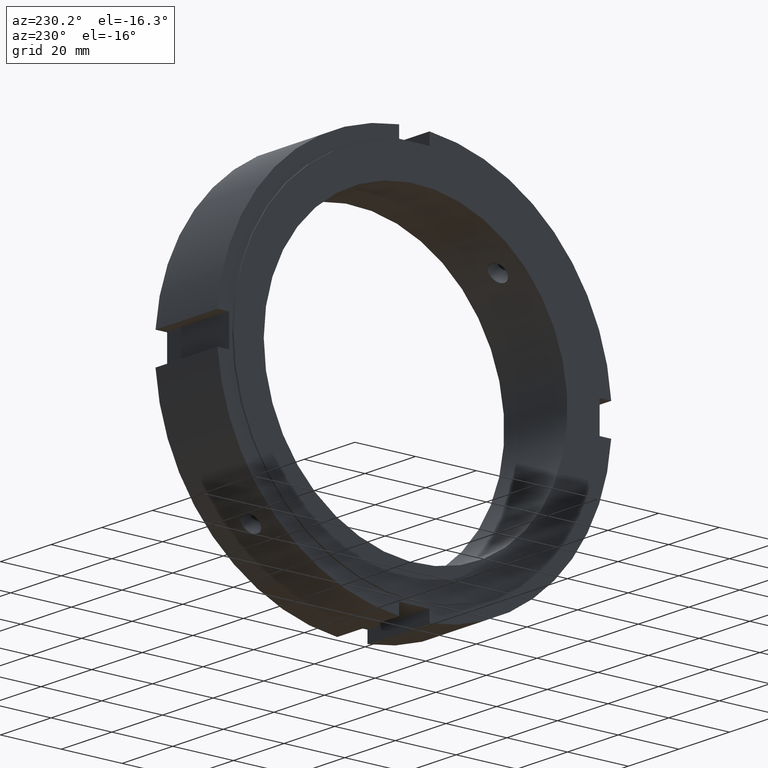
[diagram: clean part render]
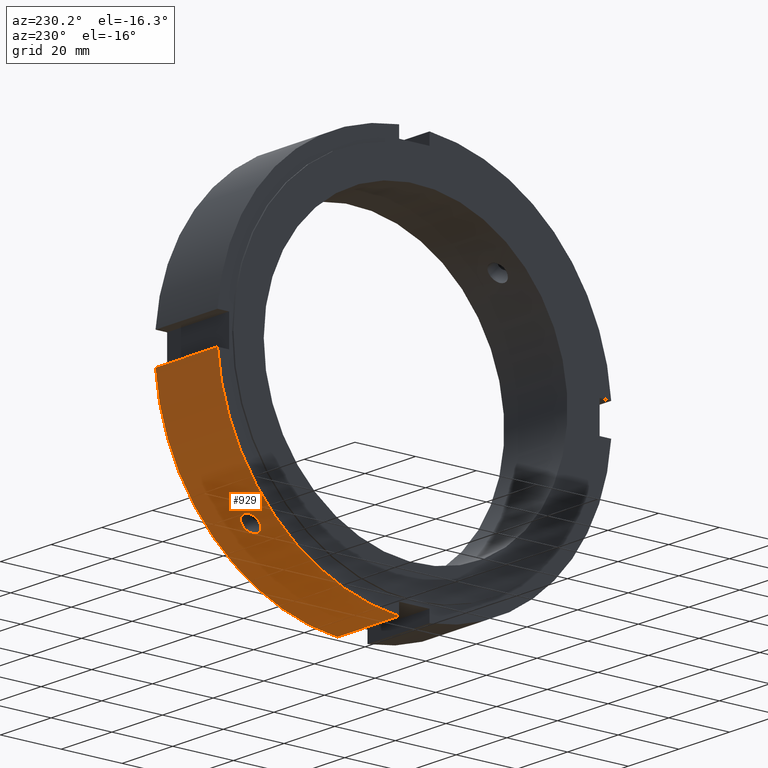
[diagram: same view with one face highlighted and labeled with its STEP entity id]
A machine part, auxiliary view. The second image highlights one B-rep face of the part: STEP entity #929.
In plain terms, the highlighted cylindrical surface (partial cylindrical patch) has radius 65 mm, axis along (1, 0, 0).
Its self-contained STEP definition (entity closure, byte-faithful):
#439=CARTESIAN_POINT('',(9.999999999999986,43.717608488995275,-48.101670532351868));
#440=VERTEX_POINT('',#439);
#441=CARTESIAN_POINT('',(9.999999999999986,43.717608488995268,-48.101670532351875));
#442=CARTESIAN_POINT('',(10.389306291871886,43.717608488995268,-48.101670532351875));
#443=CARTESIAN_POINT('',(10.804521370700371,43.77536270491251,-48.049377660548316));
#444=CARTESIAN_POINT('',(11.568279836308651,44.008947390728295,-47.835526787609631));
#445=CARTESIAN_POINT('',(11.916828226208318,44.184633561528699,-47.673829087285284));
#446=CARTESIAN_POINT('',(12.467233769035426,44.586961578307452,-47.297766120592613));
#447=CARTESIAN_POINT('',(12.70580022787075,44.840413287239542,-47.058295938169493));
#448=CARTESIAN_POINT('',(13.022184977463819,45.390331093704731,-46.528096066548216));
#449=CARTESIAN_POINT('',(13.099999999999987,45.686659706310891,-46.237221847940262));
#450=CARTESIAN_POINT('',(13.099999999999987,46.23722184794029,-45.686659706310884));
#451=CARTESIAN_POINT('',(13.022184977463809,46.528096066548237,-45.390331093704717));
#452=CARTESIAN_POINT('',(12.705800227870728,47.058295938169501,-44.840413287239535));
#453=CARTESIAN_POINT('',(12.467233769035428,47.297766120592627,-44.586961578307452));
#454=CARTESIAN_POINT('',(11.916828226208317,47.673829087285291,-44.184633561528685));
#455=CARTESIAN_POINT('',(11.568279836308637,47.835526787609624,-44.008947390728295));
#456=CARTESIAN_POINT('',(10.804521370700364,48.049377660548309,-43.77536270491251));
#457=CARTESIAN_POINT('',(10.389306291871886,48.101670532351868,-43.717608488995275));
#458=CARTESIAN_POINT('',(9.610693708128089,48.101670532351868,-43.717608488995275));
#459=CARTESIAN_POINT('',(9.195478629299608,48.049377660548309,-43.77536270491251));
#460=CARTESIAN_POINT('',(8.431720163691335,47.835526787609624,-44.008947390728295));
#461=CARTESIAN_POINT('',(8.083171773791657,47.673829087285291,-44.184633561528685));
#462=CARTESIAN_POINT('',(7.532766230964546,47.297766120592627,-44.586961578307452));
#463=CARTESIAN_POINT('',(7.294199772129244,47.058295938169501,-44.840413287239535));
#464=CARTESIAN_POINT('',(6.977815022536165,46.528096066548244,-45.39033109370471));
#465=CARTESIAN_POINT('',(6.899999999999988,46.23722184794029,-45.686659706310884));
#466=CARTESIAN_POINT('',(6.899999999999984,45.686659706310905,-46.237221847940269));
#467=CARTESIAN_POINT('',(6.977815022536151,45.390331093704731,-46.528096066548216));
#468=CARTESIAN_POINT('',(7.29419977212922,44.840413287239549,-47.058295938169493));
#469=CARTESIAN_POINT('',(7.532766230964546,44.586961578307452,-47.297766120592613));
#470=CARTESIAN_POINT('',(8.083171773791655,44.184633561528699,-47.673829087285284));
#471=CARTESIAN_POINT('',(8.431720163691324,44.008947390728295,-47.835526787609631));
#472=CARTESIAN_POINT('',(9.195478629299602,43.77536270491251,-48.049377660548316));
#473=CARTESIAN_POINT('',(9.610693708128085,43.717608488995268,-48.101670532351875));
#474=CARTESIAN_POINT('',(9.999999999999986,43.717608488995268,-48.101670532351875));
#475=B_SPLINE_CURVE_WITH_KNOTS('',3,(#441,#442,#443,#444,#445,#446,#447,#448,#449,#450,#451,#452,#453,#454,#455,#456,#457,#458,#459,#460,#461,#462,#463,#464,#465,#466,#467,#468,#469,#470,#471,#472,#473,#474),.UNSPECIFIED.,.T.,.U.,(4,2,2,2,2,2,2,2,2,2,2,2,2,2,2,2,4),(0.0,0.11679188756157,0.23358377512314,0.350375642266358,0.467167509409576,0.583959376552794,0.700751243696011,0.817543131257581,0.93433501881915,1.05112690638072,1.16791879394229,1.284710661085507,1.401502528228725,1.518294395371943,1.635086262515161,1.751878150076731,1.868670037638301),.UNSPECIFIED.);
#476=EDGE_CURVE('',#440,#440,#475,.T.);
#573=CARTESIAN_POINT('',(0.499999999999985,4.999999999999985,-64.807406984078597));
#574=VERTEX_POINT('',#573);
#583=CARTESIAN_POINT('',(24.999999999999982,4.999999999999985,-64.807406984078597));
#584=VERTEX_POINT('',#583);
#585=CARTESIAN_POINT('',(24.999999999999982,4.999999999999986,-64.807406984078597));
#586=DIRECTION('',(-1.0,0.0,0.0));
#587=VECTOR('',#586,24.499999999999996);
#588=LINE('',#585,#587);
#589=EDGE_CURVE('',#584,#574,#588,.T.);
#894=CARTESIAN_POINT('',(12.749999999999984,0.0,0.0));
#895=DIRECTION('',(1.0,0.0,0.0));
#896=DIRECTION('',(0.0,1.0,0.0));
#897=AXIS2_PLACEMENT_3D('',#894,#895,#896);
#898=CYLINDRICAL_SURFACE('',#897,65.0);
#899=ORIENTED_EDGE('',*,*,#589,.T.);
#900=CARTESIAN_POINT('',(0.499999999999985,64.807406984078597,-4.999999999999996));
#901=VERTEX_POINT('',#900);
#902=CARTESIAN_POINT('',(0.499999999999985,0.0,0.0));
#903=DIRECTION('',(1.0,0.0,0.0));
#904=DIRECTION('',(0.0,1.0,0.0));
#905=AXIS2_PLACEMENT_3D('',#902,#903,#904);
#906=CIRCLE('',#905,65.0);
#907=EDGE_CURVE('',#574,#901,#906,.T.);
#908=ORIENTED_EDGE('',*,*,#907,.T.);
#909=CARTESIAN_POINT('',(24.999999999999982,64.807406984078597,-4.999999999999996));
#910=VERTEX_POINT('',#909);
#911=CARTESIAN_POINT('',(0.499999999999986,64.807406984078597,-4.999999999999996));
#912=DIRECTION('',(1.0,0.0,0.0));
#913=VECTOR('',#912,24.499999999999996);
#914=LINE('',#911,#913);
#915=EDGE_CURVE('',#901,#910,#914,.T.);
#916=ORIENTED_EDGE('',*,*,#915,.T.);
#917=CARTESIAN_POINT('',(24.999999999999982,0.0,0.0));
#918=DIRECTION('',(1.0,0.0,0.0));
#919=DIRECTION('',(0.0,1.0,0.0));
#920=AXIS2_PLACEMENT_3D('',#917,#918,#919);
#921=CIRCLE('',#920,65.0);
#922=EDGE_CURVE('',#584,#910,#921,.T.);
#923=ORIENTED_EDGE('',*,*,#922,.F.);
#924=EDGE_LOOP('',(#899,#908,#916,#923));
#925=FACE_OUTER_BOUND('',#924,.T.);
#926=ORIENTED_EDGE('',*,*,#476,.T.);
#927=EDGE_LOOP('',(#926));
#928=FACE_BOUND('',#927,.T.);
#929=ADVANCED_FACE('',(#925,#928),#898,.T.);